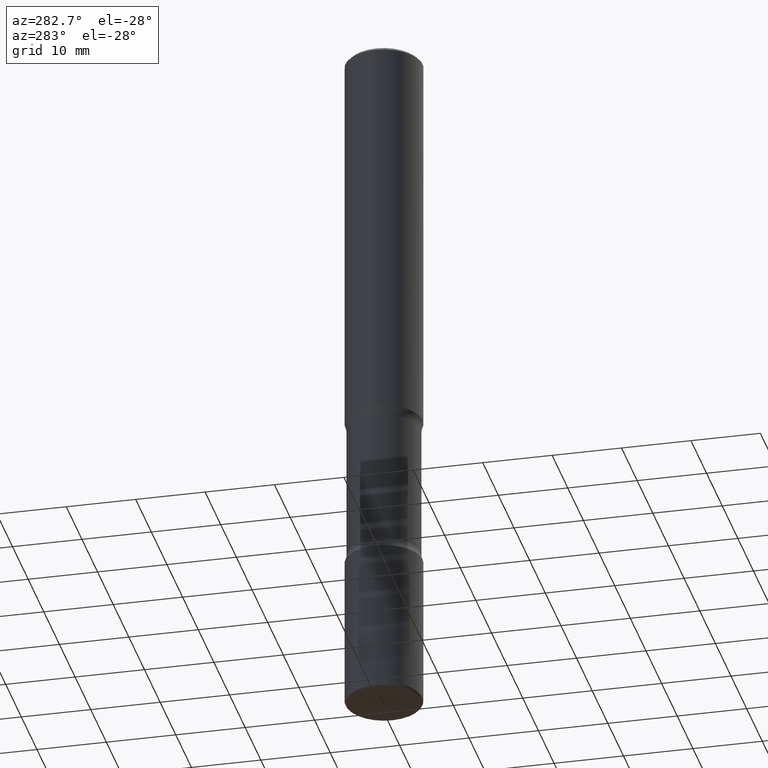
[diagram: clean part render]
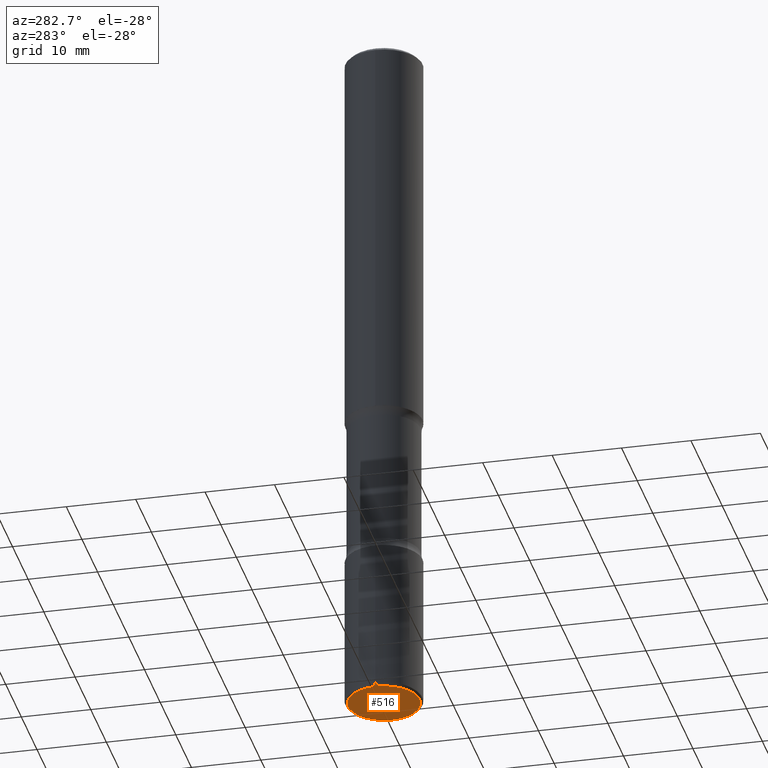
[diagram: same view with one face highlighted and labeled with its STEP entity id]
A machine part, auxiliary view. The second image highlights one B-rep face of the part: STEP entity #516.
In plain terms, the highlighted planar face has unit normal (0, -0, -1).
Its self-contained STEP definition (entity closure, byte-faithful):
#5 = DIRECTION ( 'NONE',  ( 1.000000000000000000, -6.982962677686265922E-15, 0.000000000000000000 ) ) ;
#25 = VERTEX_POINT ( 'NONE', #35 ) ;
#35 = CARTESIAN_POINT ( 'NONE',  ( -0.2037500000000001810, -1.243871771603804148E-14, -4.000000000000000000 ) ) ;
#43 = PLANE ( 'NONE',  #337 ) ;
#94 = DIRECTION ( 'NONE',  ( 1.000000000000000000, -6.982962677686265922E-15, 0.000000000000000000 ) ) ;
#107 = DIRECTION ( 'NONE',  ( -1.000000000000000000, 6.982962677686265922E-15, -4.876176775795935793E-29 ) ) ;
#152 = EDGE_CURVE ( 'NONE', #453, #25, #417, .T. ) ;
#157 = EDGE_CURVE ( 'NONE', #25, #453, #277, .T. ) ;
#176 = AXIS2_PLACEMENT_3D ( 'NONE', #343, #523, #5 ) ;
#202 = ORIENTED_EDGE ( 'NONE', *, *, #157, .F. ) ;
#267 = CARTESIAN_POINT ( 'NONE',  ( 9.781875224740546387E-29, -1.396592535537258233E-14, -4.000000000000000000 ) ) ;
#277 = CIRCLE ( 'NONE', #501, 0.2037500000000001810 ) ;
#290 = CARTESIAN_POINT ( 'NONE',  ( 9.781875224740546387E-29, -1.396592535537258233E-14, -4.000000000000000000 ) ) ;
#308 = DIRECTION ( 'NONE',  ( 2.438088387897960049E-29, -3.491481338843145188E-15, -1.000000000000000000 ) ) ;
#325 = EDGE_LOOP ( 'NONE', ( #481, #202 ) ) ;
#337 = AXIS2_PLACEMENT_3D ( 'NONE', #290, #308, #107 ) ;
#343 = CARTESIAN_POINT ( 'NONE',  ( 9.781875224740546387E-29, -1.396592535537258233E-14, -4.000000000000000000 ) ) ;
#383 = CARTESIAN_POINT ( 'NONE',  ( 0.2037500000000001810, -1.538870400095115901E-14, -4.000000000000000000 ) ) ;
#417 = CIRCLE ( 'NONE', #176, 0.2037500000000001810 ) ;
#453 = VERTEX_POINT ( 'NONE', #383 ) ;
#479 = DIRECTION ( 'NONE',  ( -2.445468806185136597E-29, 3.491481338843145583E-15, 1.000000000000000000 ) ) ;
#481 = ORIENTED_EDGE ( 'NONE', *, *, #152, .F. ) ;
#501 = AXIS2_PLACEMENT_3D ( 'NONE', #267, #479, #94 ) ;
#516 = ADVANCED_FACE ( 'NONE', ( #560 ), #43, .T. ) ;
#523 = DIRECTION ( 'NONE',  ( -2.445468806185136597E-29, 3.491481338843145583E-15, 1.000000000000000000 ) ) ;
#560 = FACE_OUTER_BOUND ( 'NONE', #325, .T. ) ;